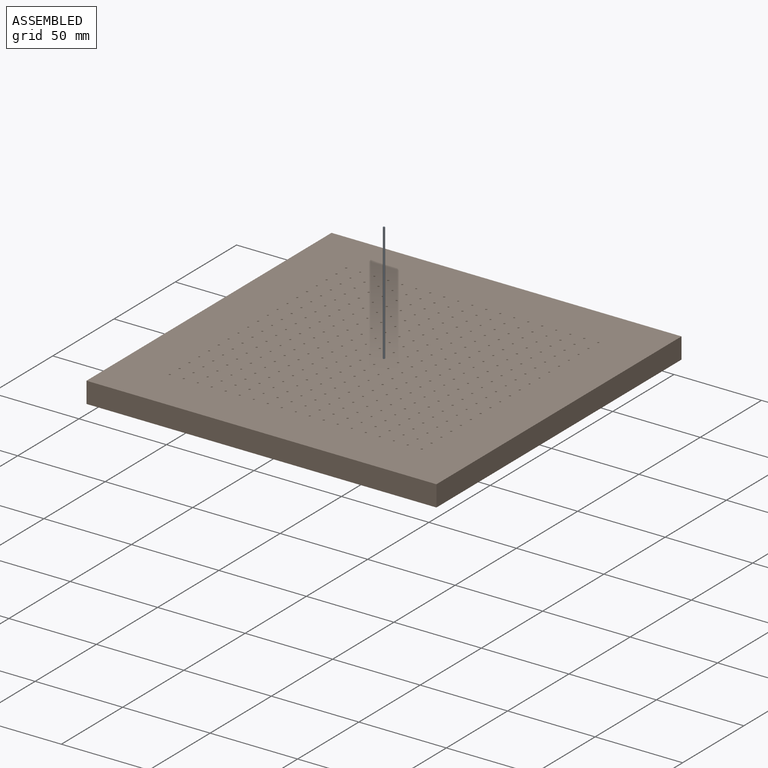
[diagram: assembled view]
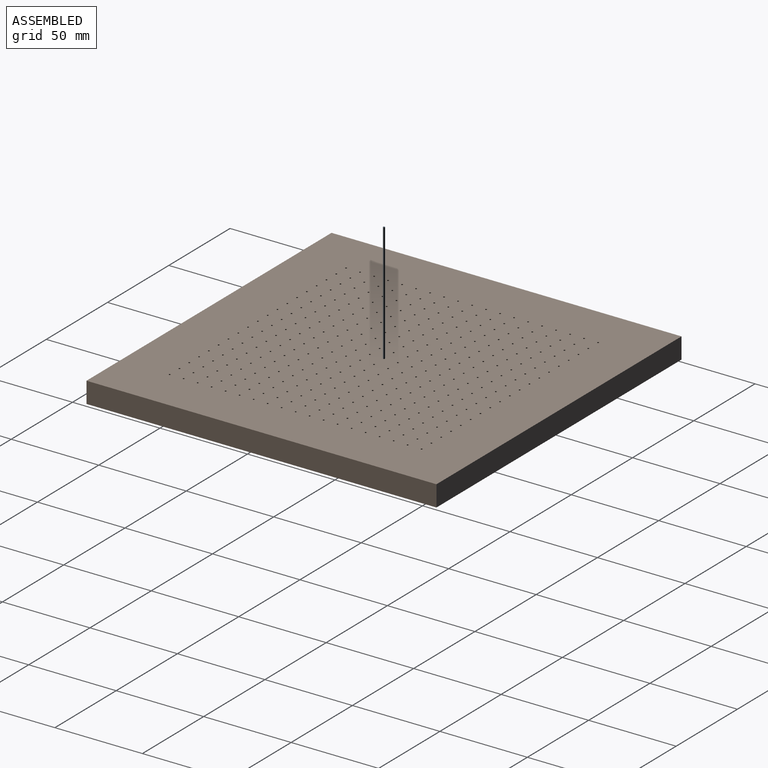
[diagram: assembled view, second angle]
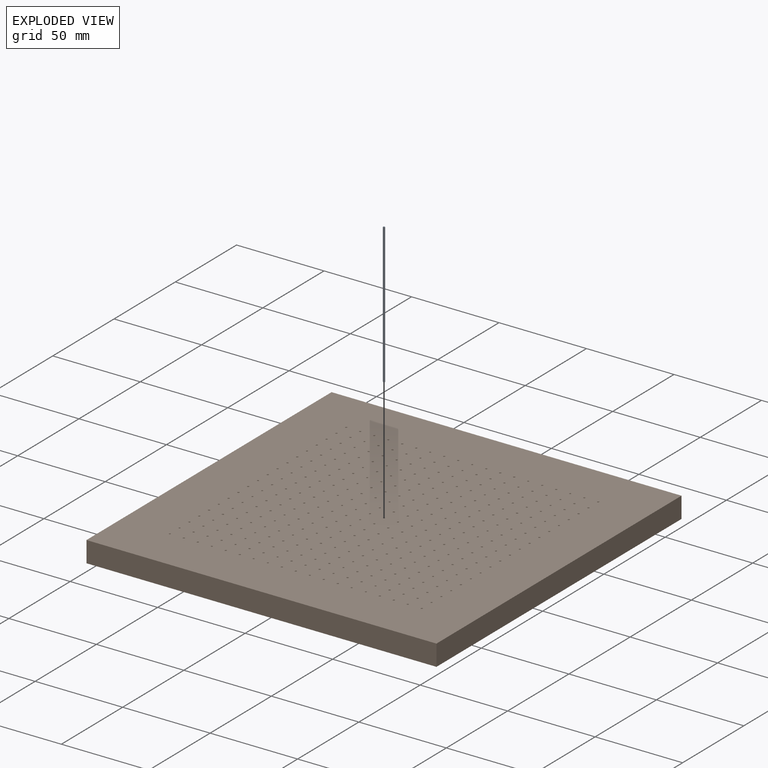
[diagram: exploded view]
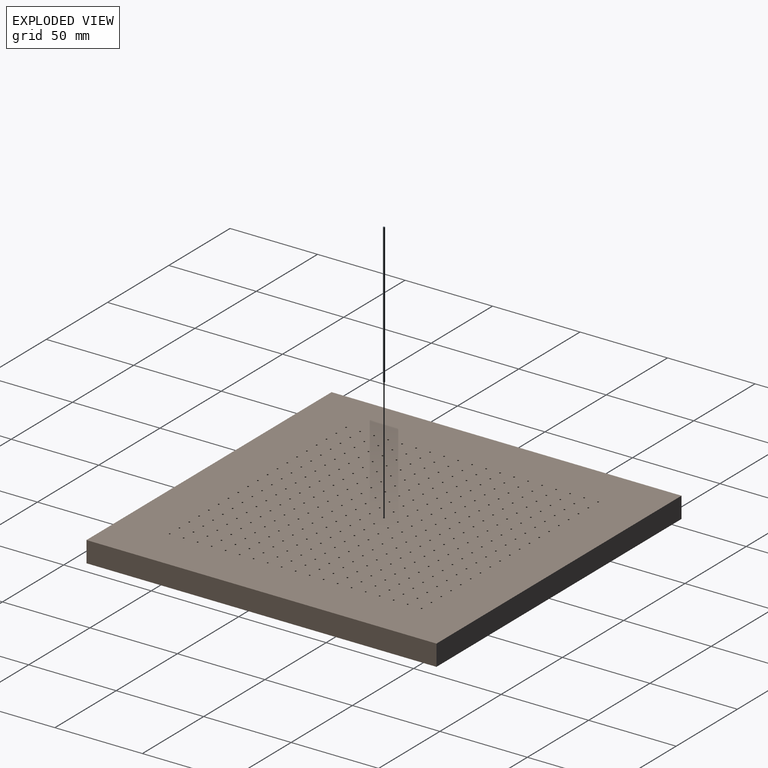
[diagram: exploded view, second angle]
ASSEMBLY  parts=2 mates=2
PART A: 3 faces, bbox 1x1x80 mm
  f0: cylinder r=0.5mm len=80mm, axis (0,0,-1), area 251.3mm2, adj f1,f2
  f1: plane 1x1mm, normal (0,0,1), area 0.8mm2, adj f0
  f2: plane 1x1mm, normal (0,0,-1), area 0.8mm2, adj f0
PART B: 367 faces, bbox 200x200x12 mm
  f0: plane 200x12mm, normal (0,-1,0), area 2400mm2, adj f1,f3,f4,f5
  f1: plane 200x12mm, normal (1,0,0), area 2400mm2, adj f0,f2,f4,f5
  f2: plane 200x12mm, normal (0,1,0), area 2400mm2, adj f1,f3,f4,f5
  f3: plane 200x12mm, normal (-1,0,0), area 2400mm2, adj f0,f2,f4,f5
  f4: plane 200x200mm, normal (0,0,-1), area 39716.5mm2, adj f0,f1,f2,f3,f6,f7,f8,f9
  f5: plane 200x200mm, normal (0,0,1), area 39716.5mm2, adj f0,f1,f2,f3,f6,f7,f8,f9
  f6: cylinder r=0.5mm len=12mm, axis (0,0,1), area 37.7mm2, adj f4,f5
  f7: cylinder r=0.5mm len=12mm, axis (0,0,1), area 37.7mm2, adj f4,f5
  f8: cylinder r=0.5mm len=12mm, axis (0,0,1), area 37.7mm2, adj f4,f5
  f9: cylinder r=0.5mm len=12mm, axis (0,0,1), area 37.7mm2, adj f4,f5
  f10: cylinder r=0.5mm len=12mm, axis (0,0,1), area 37.7mm2, adj f4,f5
  f11: cylinder r=0.5mm len=12mm, axis (0,0,1), area 37.7mm2, adj f4,f5
  f12: cylinder r=0.5mm len=12mm, axis (0,0,1), area 37.7mm2, adj f4,f5
  f13: cylinder r=0.5mm len=12mm, axis (0,0,1), area 37.7mm2, adj f4,f5
  f14: cylinder r=0.5mm len=12mm, axis (0,0,1), area 37.7mm2, adj f4,f5
  f15: cylinder r=0.5mm len=12mm, axis (0,0,1), area 37.7mm2, adj f4,f5
  f16: cylinder r=0.5mm len=12mm, axis (0,0,1), area 37.7mm2, adj f4,f5
  f17: cylinder r=0.5mm len=12mm, axis (0,0,1), area 37.7mm2, adj f4,f5
  f18: cylinder r=0.5mm len=12mm, axis (0,0,1), area 37.7mm2, adj f4,f5
  f19: cylinder r=0.5mm len=12mm, axis (0,0,1), area 37.7mm2, adj f4,f5
  f20: cylinder r=0.5mm len=12mm, axis (0,0,1), area 37.7mm2, adj f4,f5
  f21: cylinder r=0.5mm len=12mm, axis (0,0,1), area 37.7mm2, adj f4,f5
  f22: cylinder r=0.5mm len=12mm, axis (0,0,1), area 37.7mm2, adj f4,f5
  f23: cylinder r=0.5mm len=12mm, axis (0,0,1), area 37.7mm2, adj f4,f5
  f24: cylinder r=0.5mm len=12mm, axis (0,0,1), area 37.7mm2, adj f4,f5
  f25: cylinder r=0.5mm len=12mm, axis (0,0,1), area 37.7mm2, adj f4,f5
  f26: cylinder r=0.5mm len=12mm, axis (0,0,1), area 37.7mm2, adj f4,f5
  f27: cylinder r=0.5mm len=12mm, axis (0,0,1), area 37.7mm2, adj f4,f5
  f28: cylinder r=0.5mm len=12mm, axis (0,0,1), area 37.7mm2, adj f4,f5
  f29: cylinder r=0.5mm len=12mm, axis (0,0,1), area 37.7mm2, adj f4,f5
  f30: cylinder r=0.5mm len=12mm, axis (0,0,1), area 37.7mm2, adj f4,f5
  f31: cylinder r=0.5mm len=12mm, axis (0,0,1), area 37.7mm2, adj f4,f5
  f32: cylinder r=0.5mm len=12mm, axis (0,0,1), area 37.7mm2, adj f4,f5
  f33: cylinder r=0.5mm len=12mm, axis (0,0,1), area 37.7mm2, adj f4,f5
  f34: cylinder r=0.5mm len=12mm, axis (0,0,1), area 37.7mm2, adj f4,f5
  f35: cylinder r=0.5mm len=12mm, axis (0,0,1), area 37.7mm2, adj f4,f5
  f36: cylinder r=0.5mm len=12mm, axis (0,0,1), area 37.7mm2, adj f4,f5
  f37: cylinder r=0.5mm len=12mm, axis (0,0,1), area 37.7mm2, adj f4,f5
  f38: cylinder r=0.5mm len=12mm, axis (0,0,1), area 37.7mm2, adj f4,f5
  f39: cylinder r=0.5mm len=12mm, axis (0,0,1), area 37.7mm2, adj f4,f5
  f40: cylinder r=0.5mm len=12mm, axis (0,0,1), area 37.7mm2, adj f4,f5
  f41: cylinder r=0.5mm len=12mm, axis (0,0,1), area 37.7mm2, adj f4,f5
  f42: cylinder r=0.5mm len=12mm, axis (0,0,1), area 37.7mm2, adj f4,f5
  f43: cylinder r=0.5mm len=12mm, axis (0,0,1), area 37.7mm2, adj f4,f5
  f44: cylinder r=0.5mm len=12mm, axis (0,0,1), area 37.7mm2, adj f4,f5
  f45: cylinder r=0.5mm len=12mm, axis (0,0,1), area 37.7mm2, adj f4,f5
  f46: cylinder r=0.5mm len=12mm, axis (0,0,1), area 37.7mm2, adj f4,f5
  f47: cylinder r=0.5mm len=12mm, axis (0,0,1), area 37.7mm2, adj f4,f5
  f48: cylinder r=0.5mm len=12mm, axis (0,0,1), area 37.7mm2, adj f4,f5
  f49: cylinder r=0.5mm len=12mm, axis (0,0,1), area 37.7mm2, adj f4,f5
  f50: cylinder r=0.5mm len=12mm, axis (0,0,1), area 37.7mm2, adj f4,f5
  f51: cylinder r=0.5mm len=12mm, axis (0,0,1), area 37.7mm2, adj f4,f5
  f52: cylinder r=0.5mm len=12mm, axis (0,0,1), area 37.7mm2, adj f4,f5
  f53: cylinder r=0.5mm len=12mm, axis (0,0,1), area 37.7mm2, adj f4,f5
  f54: cylinder r=0.5mm len=12mm, axis (0,0,1), area 37.7mm2, adj f4,f5
  f55: cylinder r=0.5mm len=12mm, axis (0,0,1), area 37.7mm2, adj f4,f5
  f56: cylinder r=0.5mm len=12mm, axis (0,0,1), area 37.7mm2, adj f4,f5
  f57: cylinder r=0.5mm len=12mm, axis (0,0,1), area 37.7mm2, adj f4,f5
  f58: cylinder r=0.5mm len=12mm, axis (0,0,1), area 37.7mm2, adj f4,f5
  f59: cylinder r=0.5mm len=12mm, axis (0,0,1), area 37.7mm2, adj f4,f5
  f60: cylinder r=0.5mm len=12mm, axis (0,0,1), area 37.7mm2, adj f4,f5
  f61: cylinder r=0.5mm len=12mm, axis (0,0,1), area 37.7mm2, adj f4,f5
  f62: cylinder r=0.5mm len=12mm, axis (0,0,1), area 37.7mm2, adj f4,f5
  f63: cylinder r=0.5mm len=12mm, axis (0,0,1), area 37.7mm2, adj f4,f5
  f64: cylinder r=0.5mm len=12mm, axis (0,0,1), area 37.7mm2, adj f4,f5
  f65: cylinder r=0.5mm len=12mm, axis (0,0,1), area 37.7mm2, adj f4,f5
  f66: cylinder r=0.5mm len=12mm, axis (0,0,1), area 37.7mm2, adj f4,f5
  f67: cylinder r=0.5mm len=12mm, axis (0,0,1), area 37.7mm2, adj f4,f5
  f68: cylinder r=0.5mm len=12mm, axis (0,0,1), area 37.7mm2, adj f4,f5
  f69: cylinder r=0.5mm len=12mm, axis (0,0,1), area 37.7mm2, adj f4,f5
  f70: cylinder r=0.5mm len=12mm, axis (0,0,1), area 37.7mm2, adj f4,f5
  f71: cylinder r=0.5mm len=12mm, axis (0,0,1), area 37.7mm2, adj f4,f5
  f72: cylinder r=0.5mm len=12mm, axis (0,0,1), area 37.7mm2, adj f4,f5
  f73: cylinder r=0.5mm len=12mm, axis (0,0,1), area 37.7mm2, adj f4,f5
  f74: cylinder r=0.5mm len=12mm, axis (0,0,1), area 37.7mm2, adj f4,f5
  f75: cylinder r=0.5mm len=12mm, axis (0,0,1), area 37.7mm2, adj f4,f5
  f76: cylinder r=0.5mm len=12mm, axis (0,0,1), area 37.7mm2, adj f4,f5
  f77: cylinder r=0.5mm len=12mm, axis (0,0,1), area 37.7mm2, adj f4,f5
  f78: cylinder r=0.5mm len=12mm, axis (0,0,1), area 37.7mm2, adj f4,f5
  f79: cylinder r=0.5mm len=12mm, axis (0,0,1), area 37.7mm2, adj f4,f5
  f80: cylinder r=0.5mm len=12mm, axis (0,0,1), area 37.7mm2, adj f4,f5
  f81: cylinder r=0.5mm len=12mm, axis (0,0,1), area 37.7mm2, adj f4,f5
  f82: cylinder r=0.5mm len=12mm, axis (0,0,1), area 37.7mm2, adj f4,f5
  f83: cylinder r=0.5mm len=12mm, axis (0,0,1), area 37.7mm2, adj f4,f5
  f84: cylinder r=0.5mm len=12mm, axis (0,0,1), area 37.7mm2, adj f4,f5
  f85: cylinder r=0.5mm len=12mm, axis (0,0,1), area 37.7mm2, adj f4,f5
  f86: cylinder r=0.5mm len=12mm, axis (0,0,1), area 37.7mm2, adj f4,f5
  f87: cylinder r=0.5mm len=12mm, axis (0,0,1), area 37.7mm2, adj f4,f5
  f88: cylinder r=0.5mm len=12mm, axis (0,0,1), area 37.7mm2, adj f4,f5
  f89: cylinder r=0.5mm len=12mm, axis (0,0,1), area 37.7mm2, adj f4,f5
  f90: cylinder r=0.5mm len=12mm, axis (0,0,1), area 37.7mm2, adj f4,f5
  f91: cylinder r=0.5mm len=12mm, axis (0,0,1), area 37.7mm2, adj f4,f5
  f92: cylinder r=0.5mm len=12mm, axis (0,0,1), area 37.7mm2, adj f4,f5
  f93: cylinder r=0.5mm len=12mm, axis (0,0,1), area 37.7mm2, adj f4,f5
  f94: cylinder r=0.5mm len=12mm, axis (0,0,1), area 37.7mm2, adj f4,f5
  f95: cylinder r=0.5mm len=12mm, axis (0,0,1), area 37.7mm2, adj f4,f5
  f96: cylinder r=0.5mm len=12mm, axis (0,0,1), area 37.7mm2, adj f4,f5
  f97: cylinder r=0.5mm len=12mm, axis (0,0,1), area 37.7mm2, adj f4,f5
  f98: cylinder r=0.5mm len=12mm, axis (0,0,1), area 37.7mm2, adj f4,f5
  f99: cylinder r=0.5mm len=12mm, axis (0,0,1), area 37.7mm2, adj f4,f5
  f100: cylinder r=0.5mm len=12mm, axis (0,0,1), area 37.7mm2, adj f4,f5
  f101: cylinder r=0.5mm len=12mm, axis (0,0,1), area 37.7mm2, adj f4,f5
  f102: cylinder r=0.5mm len=12mm, axis (0,0,1), area 37.7mm2, adj f4,f5
  f103: cylinder r=0.5mm len=12mm, axis (0,0,1), area 37.7mm2, adj f4,f5
  f104: cylinder r=0.5mm len=12mm, axis (0,0,1), area 37.7mm2, adj f4,f5
  f105: cylinder r=0.5mm len=12mm, axis (0,0,1), area 37.7mm2, adj f4,f5
  f106: cylinder r=0.5mm len=12mm, axis (0,0,1), area 37.7mm2, adj f4,f5
  f107: cylinder r=0.5mm len=12mm, axis (0,0,1), area 37.7mm2, adj f4,f5
  f108: cylinder r=0.5mm len=12mm, axis (0,0,1), area 37.7mm2, adj f4,f5
  f109: cylinder r=0.5mm len=12mm, axis (0,0,1), area 37.7mm2, adj f4,f5
  f110: cylinder r=0.5mm len=12mm, axis (0,0,1), area 37.7mm2, adj f4,f5
  f111: cylinder r=0.5mm len=12mm, axis (0,0,1), area 37.7mm2, adj f4,f5
  f112: cylinder r=0.5mm len=12mm, axis (0,0,1), area 37.7mm2, adj f4,f5
  f113: cylinder r=0.5mm len=12mm, axis (0,0,1), area 37.7mm2, adj f4,f5
  f114: cylinder r=0.5mm len=12mm, axis (0,0,1), area 37.7mm2, adj f4,f5
  f115: cylinder r=0.5mm len=12mm, axis (0,0,1), area 37.7mm2, adj f4,f5
  f116: cylinder r=0.5mm len=12mm, axis (0,0,1), area 37.7mm2, adj f4,f5
  f117: cylinder r=0.5mm len=12mm, axis (0,0,1), area 37.7mm2, adj f4,f5
  f118: cylinder r=0.5mm len=12mm, axis (0,0,1), area 37.7mm2, adj f4,f5
  f119: cylinder r=0.5mm len=12mm, axis (0,0,1), area 37.7mm2, adj f4,f5
  f120: cylinder r=0.5mm len=12mm, axis (0,0,1), area 37.7mm2, adj f4,f5
  f121: cylinder r=0.5mm len=12mm, axis (0,0,1), area 37.7mm2, adj f4,f5
  f122: cylinder r=0.5mm len=12mm, axis (0,0,1), area 37.7mm2, adj f4,f5
  f123: cylinder r=0.5mm len=12mm, axis (0,0,1), area 37.7mm2, adj f4,f5
  f124: cylinder r=0.5mm len=12mm, axis (0,0,1), area 37.7mm2, adj f4,f5
  f125: cylinder r=0.5mm len=12mm, axis (0,0,1), area 37.7mm2, adj f4,f5
  f126: cylinder r=0.5mm len=12mm, axis (0,0,1), area 37.7mm2, adj f4,f5
  f127: cylinder r=0.5mm len=12mm, axis (0,0,1), area 37.7mm2, adj f4,f5
  f128: cylinder r=0.5mm len=12mm, axis (0,0,1), area 37.7mm2, adj f4,f5
  f129: cylinder r=0.5mm len=12mm, axis (0,0,1), area 37.7mm2, adj f4,f5
  f130: cylinder r=0.5mm len=12mm, axis (0,0,1), area 37.7mm2, adj f4,f5
  f131: cylinder r=0.5mm len=12mm, axis (0,0,1), area 37.7mm2, adj f4,f5
  f132: cylinder r=0.5mm len=12mm, axis (0,0,1), area 37.7mm2, adj f4,f5
  f133: cylinder r=0.5mm len=12mm, axis (0,0,1), area 37.7mm2, adj f4,f5
  f134: cylinder r=0.5mm len=12mm, axis (0,0,1), area 37.7mm2, adj f4,f5
  f135: cylinder r=0.5mm len=12mm, axis (0,0,1), area 37.7mm2, adj f4,f5
  f136: cylinder r=0.5mm len=12mm, axis (0,0,1), area 37.7mm2, adj f4,f5
  f137: cylinder r=0.5mm len=12mm, axis (0,0,1), area 37.7mm2, adj f4,f5
  f138: cylinder r=0.5mm len=12mm, axis (0,0,1), area 37.7mm2, adj f4,f5
  f139: cylinder r=0.5mm len=12mm, axis (0,0,1), area 37.7mm2, adj f4,f5
  f140: cylinder r=0.5mm len=12mm, axis (0,0,1), area 37.7mm2, adj f4,f5
  f141: cylinder r=0.5mm len=12mm, axis (0,0,1), area 37.7mm2, adj f4,f5
  f142: cylinder r=0.5mm len=12mm, axis (0,0,1), area 37.7mm2, adj f4,f5
  f143: cylinder r=0.5mm len=12mm, axis (0,0,1), area 37.7mm2, adj f4,f5
  f144: cylinder r=0.5mm len=12mm, axis (0,0,1), area 37.7mm2, adj f4,f5
  f145: cylinder r=0.5mm len=12mm, axis (0,0,1), area 37.7mm2, adj f4,f5
  f146: cylinder r=0.5mm len=12mm, axis (0,0,1), area 37.7mm2, adj f4,f5
  f147: cylinder r=0.5mm len=12mm, axis (0,0,1), area 37.7mm2, adj f4,f5
  f148: cylinder r=0.5mm len=12mm, axis (0,0,1), area 37.7mm2, adj f4,f5
  f149: cylinder r=0.5mm len=12mm, axis (0,0,1), area 37.7mm2, adj f4,f5
  f150: cylinder r=0.5mm len=12mm, axis (0,0,1), area 37.7mm2, adj f4,f5
  f151: cylinder r=0.5mm len=12mm, axis (0,0,1), area 37.7mm2, adj f4,f5
  f152: cylinder r=0.5mm len=12mm, axis (0,0,1), area 37.7mm2, adj f4,f5
  f153: cylinder r=0.5mm len=12mm, axis (0,0,1), area 37.7mm2, adj f4,f5
  f154: cylinder r=0.5mm len=12mm, axis (0,0,1), area 37.7mm2, adj f4,f5
  f155: cylinder r=0.5mm len=12mm, axis (0,0,1), area 37.7mm2, adj f4,f5
  f156: cylinder r=0.5mm len=12mm, axis (0,0,1), area 37.7mm2, adj f4,f5
  f157: cylinder r=0.5mm len=12mm, axis (0,0,1), area 37.7mm2, adj f4,f5
  f158: cylinder r=0.5mm len=12mm, axis (0,0,1), area 37.7mm2, adj f4,f5
  f159: cylinder r=0.5mm len=12mm, axis (0,0,1), area 37.7mm2, adj f4,f5
  f160: cylinder r=0.5mm len=12mm, axis (0,0,1), area 37.7mm2, adj f4,f5
  f161: cylinder r=0.5mm len=12mm, axis (0,0,1), area 37.7mm2, adj f4,f5
  f162: cylinder r=0.5mm len=12mm, axis (0,0,1), area 37.7mm2, adj f4,f5
  f163: cylinder r=0.5mm len=12mm, axis (0,0,1), area 37.7mm2, adj f4,f5
  f164: cylinder r=0.5mm len=12mm, axis (0,0,1), area 37.7mm2, adj f4,f5
  f165: cylinder r=0.5mm len=12mm, axis (0,0,1), area 37.7mm2, adj f4,f5
  f166: cylinder r=0.5mm len=12mm, axis (0,0,1), area 37.7mm2, adj f4,f5
  f167: cylinder r=0.5mm len=12mm, axis (0,0,1), area 37.7mm2, adj f4,f5
  f168: cylinder r=0.5mm len=12mm, axis (0,0,1), area 37.7mm2, adj f4,f5
  f169: cylinder r=0.5mm len=12mm, axis (0,0,1), area 37.7mm2, adj f4,f5
  f170: cylinder r=0.5mm len=12mm, axis (0,0,1), area 37.7mm2, adj f4,f5
  f171: cylinder r=0.5mm len=12mm, axis (0,0,1), area 37.7mm2, adj f4,f5
  f172: cylinder r=0.5mm len=12mm, axis (0,0,1), area 37.7mm2, adj f4,f5
  f173: cylinder r=0.5mm len=12mm, axis (0,0,1), area 37.7mm2, adj f4,f5
  f174: cylinder r=0.5mm len=12mm, axis (0,0,1), area 37.7mm2, adj f4,f5
  f175: cylinder r=0.5mm len=12mm, axis (0,0,1), area 37.7mm2, adj f4,f5
  f176: cylinder r=0.5mm len=12mm, axis (0,0,1), area 37.7mm2, adj f4,f5
  f177: cylinder r=0.5mm len=12mm, axis (0,0,1), area 37.7mm2, adj f4,f5
  f178: cylinder r=0.5mm len=12mm, axis (0,0,1), area 37.7mm2, adj f4,f5
  f179: cylinder r=0.5mm len=12mm, axis (0,0,1), area 37.7mm2, adj f4,f5
  f180: cylinder r=0.5mm len=12mm, axis (0,0,1), area 37.7mm2, adj f4,f5
  f181: cylinder r=0.5mm len=12mm, axis (0,0,1), area 37.7mm2, adj f4,f5
  f182: cylinder r=0.5mm len=12mm, axis (0,0,1), area 37.7mm2, adj f4,f5
  f183: cylinder r=0.5mm len=12mm, axis (0,0,1), area 37.7mm2, adj f4,f5
  f184: cylinder r=0.5mm len=12mm, axis (0,0,1), area 37.7mm2, adj f4,f5
  f185: cylinder r=0.5mm len=12mm, axis (0,0,1), area 37.7mm2, adj f4,f5
  f186: cylinder r=0.5mm len=12mm, axis (0,0,1), area 37.7mm2, adj f4,f5
  f187: cylinder r=0.5mm len=12mm, axis (0,0,1), area 37.7mm2, adj f4,f5
  f188: cylinder r=0.5mm len=12mm, axis (0,0,1), area 37.7mm2, adj f4,f5
  f189: cylinder r=0.5mm len=12mm, axis (0,0,1), area 37.7mm2, adj f4,f5
  f190: cylinder r=0.5mm len=12mm, axis (0,0,1), area 37.7mm2, adj f4,f5
  f191: cylinder r=0.5mm len=12mm, axis (0,0,1), area 37.7mm2, adj f4,f5
  f192: cylinder r=0.5mm len=12mm, axis (0,0,1), area 37.7mm2, adj f4,f5
  f193: cylinder r=0.5mm len=12mm, axis (0,0,1), area 37.7mm2, adj f4,f5
  f194: cylinder r=0.5mm len=12mm, axis (0,0,1), area 37.7mm2, adj f4,f5
  f195: cylinder r=0.5mm len=12mm, axis (0,0,1), area 37.7mm2, adj f4,f5
  f196: cylinder r=0.5mm len=12mm, axis (0,0,1), area 37.7mm2, adj f4,f5
  f197: cylinder r=0.5mm len=12mm, axis (0,0,1), area 37.7mm2, adj f4,f5
  f198: cylinder r=0.5mm len=12mm, axis (0,0,1), area 37.7mm2, adj f4,f5
  f199: cylinder r=0.5mm len=12mm, axis (0,0,1), area 37.7mm2, adj f4,f5
  f200: cylinder r=0.5mm len=12mm, axis (0,0,1), area 37.7mm2, adj f4,f5
  f201: cylinder r=0.5mm len=12mm, axis (0,0,1), area 37.7mm2, adj f4,f5
  f202: cylinder r=0.5mm len=12mm, axis (0,0,1), area 37.7mm2, adj f4,f5
  f203: cylinder r=0.5mm len=12mm, axis (0,0,1), area 37.7mm2, adj f4,f5
  f204: cylinder r=0.5mm len=12mm, axis (0,0,1), area 37.7mm2, adj f4,f5
  f205: cylinder r=0.5mm len=12mm, axis (0,0,1), area 37.7mm2, adj f4,f5
  f206: cylinder r=0.5mm len=12mm, axis (0,0,1), area 37.7mm2, adj f4,f5
  f207: cylinder r=0.5mm len=12mm, axis (0,0,1), area 37.7mm2, adj f4,f5
  f208: cylinder r=0.5mm len=12mm, axis (0,0,1), area 37.7mm2, adj f4,f5
  f209: cylinder r=0.5mm len=12mm, axis (0,0,1), area 37.7mm2, adj f4,f5
  f210: cylinder r=0.5mm len=12mm, axis (0,0,1), area 37.7mm2, adj f4,f5
  f211: cylinder r=0.5mm len=12mm, axis (0,0,1), area 37.7mm2, adj f4,f5
  f212: cylinder r=0.5mm len=12mm, axis (0,0,1), area 37.7mm2, adj f4,f5
  f213: cylinder r=0.5mm len=12mm, axis (0,0,1), area 37.7mm2, adj f4,f5
  f214: cylinder r=0.5mm len=12mm, axis (0,0,1), area 37.7mm2, adj f4,f5
  f215: cylinder r=0.5mm len=12mm, axis (0,0,1), area 37.7mm2, adj f4,f5
  f216: cylinder r=0.5mm len=12mm, axis (0,0,1), area 37.7mm2, adj f4,f5
  f217: cylinder r=0.5mm len=12mm, axis (0,0,1), area 37.7mm2, adj f4,f5
  f218: cylinder r=0.5mm len=12mm, axis (0,0,1), area 37.7mm2, adj f4,f5
  f219: cylinder r=0.5mm len=12mm, axis (0,0,1), area 37.7mm2, adj f4,f5
  f220: cylinder r=0.5mm len=12mm, axis (0,0,1), area 37.7mm2, adj f4,f5
  f221: cylinder r=0.5mm len=12mm, axis (0,0,1), area 37.7mm2, adj f4,f5
  f222: cylinder r=0.5mm len=12mm, axis (0,0,1), area 37.7mm2, adj f4,f5
  f223: cylinder r=0.5mm len=12mm, axis (0,0,1), area 37.7mm2, adj f4,f5
  f224: cylinder r=0.5mm len=12mm, axis (0,0,1), area 37.7mm2, adj f4,f5
  f225: cylinder r=0.5mm len=12mm, axis (0,0,1), area 37.7mm2, adj f4,f5
  f226: cylinder r=0.5mm len=12mm, axis (0,0,1), area 37.7mm2, adj f4,f5
  f227: cylinder r=0.5mm len=12mm, axis (0,0,1), area 37.7mm2, adj f4,f5
  f228: cylinder r=0.5mm len=12mm, axis (0,0,1), area 37.7mm2, adj f4,f5
  f229: cylinder r=0.5mm len=12mm, axis (0,0,1), area 37.7mm2, adj f4,f5
  f230: cylinder r=0.5mm len=12mm, axis (0,0,1), area 37.7mm2, adj f4,f5
  f231: cylinder r=0.5mm len=12mm, axis (0,0,1), area 37.7mm2, adj f4,f5
  f232: cylinder r=0.5mm len=12mm, axis (0,0,1), area 37.7mm2, adj f4,f5
  f233: cylinder r=0.5mm len=12mm, axis (0,0,1), area 37.7mm2, adj f4,f5
  f234: cylinder r=0.5mm len=12mm, axis (0,0,1), area 37.7mm2, adj f4,f5
  f235: cylinder r=0.5mm len=12mm, axis (0,0,1), area 37.7mm2, adj f4,f5
  f236: cylinder r=0.5mm len=12mm, axis (0,0,1), area 37.7mm2, adj f4,f5
  f237: cylinder r=0.5mm len=12mm, axis (0,0,1), area 37.7mm2, adj f4,f5
  f238: cylinder r=0.5mm len=12mm, axis (0,0,1), area 37.7mm2, adj f4,f5
  f239: cylinder r=0.5mm len=12mm, axis (0,0,1), area 37.7mm2, adj f4,f5
  f240: cylinder r=0.5mm len=12mm, axis (0,0,1), area 37.7mm2, adj f4,f5
  f241: cylinder r=0.5mm len=12mm, axis (0,0,1), area 37.7mm2, adj f4,f5
  f242: cylinder r=0.5mm len=12mm, axis (0,0,1), area 37.7mm2, adj f4,f5
  f243: cylinder r=0.5mm len=12mm, axis (0,0,1), area 37.7mm2, adj f4,f5
  f244: cylinder r=0.5mm len=12mm, axis (0,0,1), area 37.7mm2, adj f4,f5
  f245: cylinder r=0.5mm len=12mm, axis (0,0,1), area 37.7mm2, adj f4,f5
  f246: cylinder r=0.5mm len=12mm, axis (0,0,1), area 37.7mm2, adj f4,f5
  f247: cylinder r=0.5mm len=12mm, axis (0,0,1), area 37.7mm2, adj f4,f5
  f248: cylinder r=0.5mm len=12mm, axis (0,0,1), area 37.7mm2, adj f4,f5
  f249: cylinder r=0.5mm len=12mm, axis (0,0,1), area 37.7mm2, adj f4,f5
  f250: cylinder r=0.5mm len=12mm, axis (0,0,1), area 37.7mm2, adj f4,f5
  f251: cylinder r=0.5mm len=12mm, axis (0,0,1), area 37.7mm2, adj f4,f5
  f252: cylinder r=0.5mm len=12mm, axis (0,0,1), area 37.7mm2, adj f4,f5
  f253: cylinder r=0.5mm len=12mm, axis (0,0,1), area 37.7mm2, adj f4,f5
  f254: cylinder r=0.5mm len=12mm, axis (0,0,1), area 37.7mm2, adj f4,f5
  f255: cylinder r=0.5mm len=12mm, axis (0,0,1), area 37.7mm2, adj f4,f5
  f256: cylinder r=0.5mm len=12mm, axis (0,0,1), area 37.7mm2, adj f4,f5
  f257: cylinder r=0.5mm len=12mm, axis (0,0,1), area 37.7mm2, adj f4,f5
  f258: cylinder r=0.5mm len=12mm, axis (0,0,1), area 37.7mm2, adj f4,f5
  f259: cylinder r=0.5mm len=12mm, axis (0,0,1), area 37.7mm2, adj f4,f5
  f260: cylinder r=0.5mm len=12mm, axis (0,0,1), area 37.7mm2, adj f4,f5
  f261: cylinder r=0.5mm len=12mm, axis (0,0,1), area 37.7mm2, adj f4,f5
  f262: cylinder r=0.5mm len=12mm, axis (0,0,1), area 37.7mm2, adj f4,f5
  f263: cylinder r=0.5mm len=12mm, axis (0,0,1), area 37.7mm2, adj f4,f5
  f264: cylinder r=0.5mm len=12mm, axis (0,0,1), area 37.7mm2, adj f4,f5
  f265: cylinder r=0.5mm len=12mm, axis (0,0,1), area 37.7mm2, adj f4,f5
  f266: cylinder r=0.5mm len=12mm, axis (0,0,1), area 37.7mm2, adj f4,f5
  f267: cylinder r=0.5mm len=12mm, axis (0,0,1), area 37.7mm2, adj f4,f5
  f268: cylinder r=0.5mm len=12mm, axis (0,0,1), area 37.7mm2, adj f4,f5
  f269: cylinder r=0.5mm len=12mm, axis (0,0,1), area 37.7mm2, adj f4,f5
  f270: cylinder r=0.5mm len=12mm, axis (0,0,1), area 37.7mm2, adj f4,f5
  f271: cylinder r=0.5mm len=12mm, axis (0,0,1), area 37.7mm2, adj f4,f5
  f272: cylinder r=0.5mm len=12mm, axis (0,0,1), area 37.7mm2, adj f4,f5
  f273: cylinder r=0.5mm len=12mm, axis (0,0,1), area 37.7mm2, adj f4,f5
  f274: cylinder r=0.5mm len=12mm, axis (0,0,1), area 37.7mm2, adj f4,f5
  f275: cylinder r=0.5mm len=12mm, axis (0,0,1), area 37.7mm2, adj f4,f5
  f276: cylinder r=0.5mm len=12mm, axis (0,0,1), area 37.7mm2, adj f4,f5
  f277: cylinder r=0.5mm len=12mm, axis (0,0,1), area 37.7mm2, adj f4,f5
  f278: cylinder r=0.5mm len=12mm, axis (0,0,1), area 37.7mm2, adj f4,f5
  f279: cylinder r=0.5mm len=12mm, axis (0,0,1), area 37.7mm2, adj f4,f5
  f280: cylinder r=0.5mm len=12mm, axis (0,0,1), area 37.7mm2, adj f4,f5
  f281: cylinder r=0.5mm len=12mm, axis (0,0,1), area 37.7mm2, adj f4,f5
  f282: cylinder r=0.5mm len=12mm, axis (0,0,1), area 37.7mm2, adj f4,f5
  f283: cylinder r=0.5mm len=12mm, axis (0,0,1), area 37.7mm2, adj f4,f5
  f284: cylinder r=0.5mm len=12mm, axis (0,0,1), area 37.7mm2, adj f4,f5
  f285: cylinder r=0.5mm len=12mm, axis (0,0,1), area 37.7mm2, adj f4,f5
  f286: cylinder r=0.5mm len=12mm, axis (0,0,1), area 37.7mm2, adj f4,f5
  f287: cylinder r=0.5mm len=12mm, axis (0,0,1), area 37.7mm2, adj f4,f5
  f288: cylinder r=0.5mm len=12mm, axis (0,0,1), area 37.7mm2, adj f4,f5
  f289: cylinder r=0.5mm len=12mm, axis (0,0,1), area 37.7mm2, adj f4,f5
  f290: cylinder r=0.5mm len=12mm, axis (0,0,1), area 37.7mm2, adj f4,f5
  f291: cylinder r=0.5mm len=12mm, axis (0,0,1), area 37.7mm2, adj f4,f5
  f292: cylinder r=0.5mm len=12mm, axis (0,0,1), area 37.7mm2, adj f4,f5
  f293: cylinder r=0.5mm len=12mm, axis (0,0,1), area 37.7mm2, adj f4,f5
  f294: cylinder r=0.5mm len=12mm, axis (0,0,1), area 37.7mm2, adj f4,f5
  f295: cylinder r=0.5mm len=12mm, axis (0,0,1), area 37.7mm2, adj f4,f5
  f296: cylinder r=0.5mm len=12mm, axis (0,0,1), area 37.7mm2, adj f4,f5
  f297: cylinder r=0.5mm len=12mm, axis (0,0,1), area 37.7mm2, adj f4,f5
  f298: cylinder r=0.5mm len=12mm, axis (0,0,1), area 37.7mm2, adj f4,f5
  f299: cylinder r=0.5mm len=12mm, axis (0,0,1), area 37.7mm2, adj f4,f5
  f300: cylinder r=0.5mm len=12mm, axis (0,0,1), area 37.7mm2, adj f4,f5
  f301: cylinder r=0.5mm len=12mm, axis (0,0,1), area 37.7mm2, adj f4,f5
  f302: cylinder r=0.5mm len=12mm, axis (0,0,1), area 37.7mm2, adj f4,f5
  f303: cylinder r=0.5mm len=12mm, axis (0,0,1), area 37.7mm2, adj f4,f5
  f304: cylinder r=0.5mm len=12mm, axis (0,0,1), area 37.7mm2, adj f4,f5
  f305: cylinder r=0.5mm len=12mm, axis (0,0,1), area 37.7mm2, adj f4,f5
  f306: cylinder r=0.5mm len=12mm, axis (0,0,1), area 37.7mm2, adj f4,f5
  f307: cylinder r=0.5mm len=12mm, axis (0,0,1), area 37.7mm2, adj f4,f5
  f308: cylinder r=0.5mm len=12mm, axis (0,0,1), area 37.7mm2, adj f4,f5
  f309: cylinder r=0.5mm len=12mm, axis (0,0,1), area 37.7mm2, adj f4,f5
  f310: cylinder r=0.5mm len=12mm, axis (0,0,1), area 37.7mm2, adj f4,f5
  f311: cylinder r=0.5mm len=12mm, axis (0,0,1), area 37.7mm2, adj f4,f5
  f312: cylinder r=0.5mm len=12mm, axis (0,0,1), area 37.7mm2, adj f4,f5
  f313: cylinder r=0.5mm len=12mm, axis (0,0,1), area 37.7mm2, adj f4,f5
  f314: cylinder r=0.5mm len=12mm, axis (0,0,1), area 37.7mm2, adj f4,f5
  f315: cylinder r=0.5mm len=12mm, axis (0,0,1), area 37.7mm2, adj f4,f5
  f316: cylinder r=0.5mm len=12mm, axis (0,0,1), area 37.7mm2, adj f4,f5
  f317: cylinder r=0.5mm len=12mm, axis (0,0,1), area 37.7mm2, adj f4,f5
  f318: cylinder r=0.5mm len=12mm, axis (0,0,1), area 37.7mm2, adj f4,f5
  f319: cylinder r=0.5mm len=12mm, axis (0,0,1), area 37.7mm2, adj f4,f5
  f320: cylinder r=0.5mm len=12mm, axis (0,0,1), area 37.7mm2, adj f4,f5
  f321: cylinder r=0.5mm len=12mm, axis (0,0,1), area 37.7mm2, adj f4,f5
  f322: cylinder r=0.5mm len=12mm, axis (0,0,1), area 37.7mm2, adj f4,f5
  f323: cylinder r=0.5mm len=12mm, axis (0,0,1), area 37.7mm2, adj f4,f5
  f324: cylinder r=0.5mm len=12mm, axis (0,0,1), area 37.7mm2, adj f4,f5
  f325: cylinder r=0.5mm len=12mm, axis (0,0,1), area 37.7mm2, adj f4,f5
  f326: cylinder r=0.5mm len=12mm, axis (0,0,1), area 37.7mm2, adj f4,f5
  f327: cylinder r=0.5mm len=12mm, axis (0,0,1), area 37.7mm2, adj f4,f5
  f328: cylinder r=0.5mm len=12mm, axis (0,0,1), area 37.7mm2, adj f4,f5
  f329: cylinder r=0.5mm len=12mm, axis (0,0,1), area 37.7mm2, adj f4,f5
  f330: cylinder r=0.5mm len=12mm, axis (0,0,1), area 37.7mm2, adj f4,f5
  f331: cylinder r=0.5mm len=12mm, axis (0,0,1), area 37.7mm2, adj f4,f5
  f332: cylinder r=0.5mm len=12mm, axis (0,0,1), area 37.7mm2, adj f4,f5
  f333: cylinder r=0.5mm len=12mm, axis (0,0,1), area 37.7mm2, adj f4,f5
  f334: cylinder r=0.5mm len=12mm, axis (0,0,1), area 37.7mm2, adj f4,f5
  f335: cylinder r=0.5mm len=12mm, axis (0,0,1), area 37.7mm2, adj f4,f5
  f336: cylinder r=0.5mm len=12mm, axis (0,0,1), area 37.7mm2, adj f4,f5
  f337: cylinder r=0.5mm len=12mm, axis (0,0,1), area 37.7mm2, adj f4,f5
  f338: cylinder r=0.5mm len=12mm, axis (0,0,1), area 37.7mm2, adj f4,f5
  f339: cylinder r=0.5mm len=12mm, axis (0,0,1), area 37.7mm2, adj f4,f5
  f340: cylinder r=0.5mm len=12mm, axis (0,0,1), area 37.7mm2, adj f4,f5
  f341: cylinder r=0.5mm len=12mm, axis (0,0,1), area 37.7mm2, adj f4,f5
  f342: cylinder r=0.5mm len=12mm, axis (0,0,1), area 37.7mm2, adj f4,f5
  f343: cylinder r=0.5mm len=12mm, axis (0,0,1), area 37.7mm2, adj f4,f5
  f344: cylinder r=0.5mm len=12mm, axis (0,0,1), area 37.7mm2, adj f4,f5
  f345: cylinder r=0.5mm len=12mm, axis (0,0,1), area 37.7mm2, adj f4,f5
  f346: cylinder r=0.5mm len=12mm, axis (0,0,1), area 37.7mm2, adj f4,f5
  f347: cylinder r=0.5mm len=12mm, axis (0,0,1), area 37.7mm2, adj f4,f5
  f348: cylinder r=0.5mm len=12mm, axis (0,0,1), area 37.7mm2, adj f4,f5
  f349: cylinder r=0.5mm len=12mm, axis (0,0,1), area 37.7mm2, adj f4,f5
  f350: cylinder r=0.5mm len=12mm, axis (0,0,1), area 37.7mm2, adj f4,f5
  f351: cylinder r=0.5mm len=12mm, axis (0,0,1), area 37.7mm2, adj f4,f5
  f352: cylinder r=0.5mm len=12mm, axis (0,0,1), area 37.7mm2, adj f4,f5
  f353: cylinder r=0.5mm len=12mm, axis (0,0,1), area 37.7mm2, adj f4,f5
  f354: cylinder r=0.5mm len=12mm, axis (0,0,1), area 37.7mm2, adj f4,f5
  f355: cylinder r=0.5mm len=12mm, axis (0,0,1), area 37.7mm2, adj f4,f5
  f356: cylinder r=0.5mm len=12mm, axis (0,0,1), area 37.7mm2, adj f4,f5
  f357: cylinder r=0.5mm len=12mm, axis (0,0,1), area 37.7mm2, adj f4,f5
  f358: cylinder r=0.5mm len=12mm, axis (0,0,1), area 37.7mm2, adj f4,f5
  f359: cylinder r=0.5mm len=12mm, axis (0,0,1), area 37.7mm2, adj f4,f5
  f360: cylinder r=0.5mm len=12mm, axis (0,0,1), area 37.7mm2, adj f4,f5
  f361: cylinder r=0.5mm len=12mm, axis (0,0,1), area 37.7mm2, adj f4,f5
  f362: cylinder r=0.5mm len=12mm, axis (0,0,1), area 37.7mm2, adj f4,f5
  f363: cylinder r=0.5mm len=12mm, axis (0,0,1), area 37.7mm2, adj f4,f5
  f364: cylinder r=0.5mm len=12mm, axis (0,0,1), area 37.7mm2, adj f4,f5
  f365: cylinder r=0.5mm len=12mm, axis (0,0,1), area 37.7mm2, adj f4,f5
  f366: cylinder r=0.5mm len=12mm, axis (0,0,1), area 37.7mm2, adj f4,f5
PLACE A t=(-49.86,13.15,-35.33)mm
PLACE B t=(-49.86,13.15,-23.33)mm
MATE cylindrical A.f0 <-> B.f6  axis (0,0,-1) through (-49.86,13.15,4.67)mm
MATE planar B.f6 <-> A.f0  axis (0,0,-1) through (-49.86,13.15,-35.33)mm
